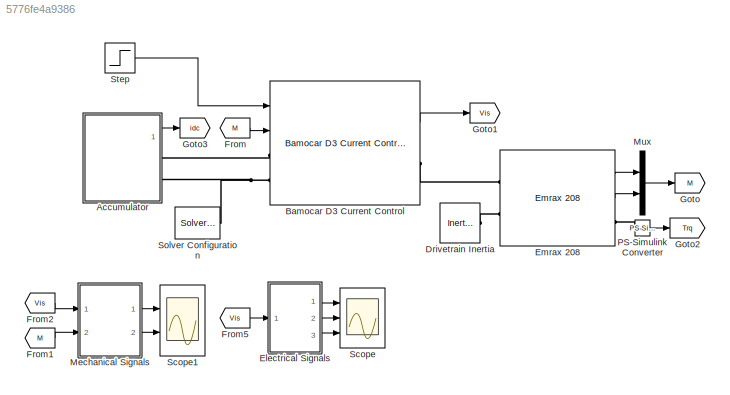
MODEL slx_5776fe4a9386
KIND model
CONFIG AbsTol = auto
CONFIG EnableMultiTasking = off
CONFIG FixedStep = auto
CONFIG InitFcn = DriveTrainInitialise;
CONFIG MaxStep = auto
CONFIG MinStep = auto
CONFIG RelTol = 1e-3
CONFIG SampleTimeConstraint = Unconstrained
CONFIG Solver = VariableStepAuto
CONFIG SolverName = VariableStepAuto
CONFIG StartTime = 0.0
CONFIG StopTime = 5
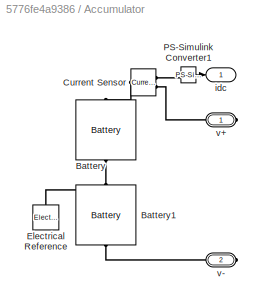
BLOCK [SubSystem] Accumulator
  AncestorBlock = AccumulatorLIB/Accumulator (Simple)
  Ports = [0, 1, 0, 0, 0, 0, 2]
  RequestExecContextInheritance = off
BLOCK [Reference] Accumulator/Battery  REF=ee_lib/Sources/Battery
  Ports = [0, 0, 0, 0, 0, 1, 1]
  SourceBlock = ee_lib/Sources/Battery
  SourceProductBaseCode = PS
  SourceProductName = Simscape Electrical
  SourceType = Battery
BLOCK [Reference] Accumulator/Battery1  REF=ee_lib/Sources/Battery
  Ports = [0, 0, 0, 0, 0, 1, 1]
  SourceBlock = ee_lib/Sources/Battery
  SourceProductBaseCode = PS
  SourceProductName = Simscape Electrical
  SourceType = Battery
BLOCK [Reference] Accumulator/Current Sensor  REF=fl_lib/Electrical/Electrical Sensors/Current Sensor
  Ports = [0, 0, 0, 0, 0, 1, 2]
  SourceBlock = fl_lib/Electrical/Electrical Sensors/Current Sensor
  SourceProductBaseCode = SS
  SourceProductName = Simscape
  SourceType = Current Sensor
BLOCK [Reference] Accumulator/Electrical Reference  REF=fl_lib/Electrical/Electrical Elements/Electrical Reference
  Ports = [0, 0, 0, 0, 0, 1]
  SourceBlock = fl_lib/Electrical/Electrical Elements/Electrical Reference
  SourceProductName = Foundation Library
  SourceType = Electrical Reference
BLOCK [Reference] Accumulator/PS-Simulink Converter1  REF=nesl_utility/PS-Simulink
Converter
  Ports = [0, 1, 0, 0, 0, 1]
  SourceBlock = nesl_utility/PS-Simulink\nConverter
  SourceProductBaseCode = SS
  SourceProductName = Simscape
  SourceType = PS-Simulink\nConverter
BLOCK [Outport] Accumulator/idc
  IconDisplay = Port number
BLOCK [PMIOPort] Accumulator/v+
  Side = Right
BLOCK [PMIOPort] Accumulator/v-
  Port = 2
  Side = Right
BLOCK [Reference] Bamocar D3 Current Control  REF=InverterLIB/Bamocar D3 Current Control (Simple IGBTs)
  Ports = [2, 1, 0, 0, 0, 2, 1]
  SourceBlock = InverterLIB/Bamocar D3 Current Control (Simple IGBTs)
  SourceType = Bamocar D3 Current Controlled (Simple Diode)
BLOCK [Reference] Drivetrain Inertia  REF=fl_lib/Mechanical/Rotational Elements/Inertia
  Ports = [0, 0, 0, 0, 0, 1]
  SourceBlock = fl_lib/Mechanical/Rotational Elements/Inertia
  SourceProductBaseCode = SS
  SourceProductName = Simscape
  SourceType = Inertia
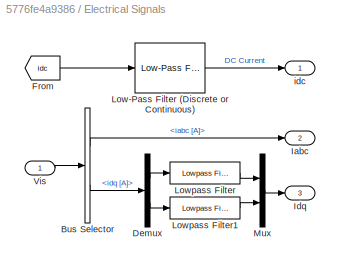
BLOCK [SubSystem] Electrical Signals
  Ports = [1, 3]
  RequestExecContextInheritance = off
BLOCK [BusSelector] Electrical Signals/Bus Selector
  OutputAsBus = off
  OutputSignals = signal2.iabc [A],signal2.idq [A]
  Ports = [1, 2]
BLOCK [Demux] Electrical Signals/Demux
  DisplayOption = bar
  Outputs = 2
  Ports = [1, 2]
BLOCK [From] Electrical Signals/From
  GotoTag = idc
  TagVisibility = global
BLOCK [Outport] Electrical Signals/Iabc
  IconDisplay = Port number
  Port = 2
BLOCK [Outport] Electrical Signals/Idq
  IconDisplay = Port number
  Port = 3
BLOCK [Reference] Electrical Signals/Low-Pass Filter (Discrete or Continuous)  REF=eeGeneralControl/Low-Pass Filter
(Discrete or Continuous)
  Ports = [1, 1]
  SourceBlock = eeGeneralControl/Low-Pass Filter\n(Discrete or Continuous)
  SourceProductBaseCode = PS
  SourceProductName = Simscape Electrical
  SourceType = Low-Pass Filter (Discrete or Continuous)
BLOCK [Reference] Electrical Signals/Lowpass Filter  REF=dspfdesign/Lowpass Filter
  Ports = [1, 1]
  SourceBlock = dspfdesign/Lowpass Filter
  SourceProductBaseCode = DS
  SourceProductName = DSP System Toolbox
  SourceType = dsp.LowpassFilter
BLOCK [Reference] Electrical Signals/Lowpass Filter1  REF=dspfdesign/Lowpass Filter
  Ports = [1, 1]
  SourceBlock = dspfdesign/Lowpass Filter
  SourceProductBaseCode = DS
  SourceProductName = DSP System Toolbox
  SourceType = dsp.LowpassFilter
BLOCK [Mux] Electrical Signals/Mux
  DisplayOption = bar
  Inputs = 2
  Ports = [2, 1]
BLOCK [Inport] Electrical Signals/Vis
  IconDisplay = Port number
BLOCK [Outport] Electrical Signals/idc
  IconDisplay = Port number
BLOCK [Reference] Emrax 208  REF=MotorLIB/Emrax 208
  Ports = [0, 2, 0, 0, 0, 2, 1]
  SourceBlock = MotorLIB/Emrax 208
  SourceType = Emrax 208
BLOCK [From] From
  GotoTag = M
BLOCK [From] From1
  GotoTag = M
BLOCK [From] From2
  GotoTag = Vis
BLOCK [From] From5
  GotoTag = Vis
BLOCK [Goto] Goto
  GotoTag = M
BLOCK [Goto] Goto1
  GotoTag = Vis
BLOCK [Goto] Goto2
  GotoTag = Trq
  TagVisibility = global
BLOCK [Goto] Goto3
  GotoTag = idc
  TagVisibility = global
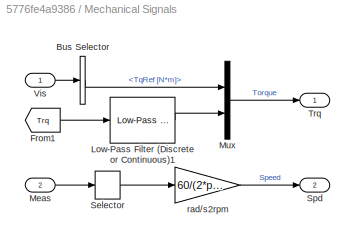
BLOCK [SubSystem] Mechanical Signals
  Ports = [2, 2]
  RequestExecContextInheritance = off
BLOCK [BusSelector] Mechanical Signals/Bus Selector
  OutputAsBus = off
  OutputSignals = signal2.TqRef [N*m]
  Ports = [1, 1]
BLOCK [From] Mechanical Signals/From1
  GotoTag = Trq
  TagVisibility = global
BLOCK [Reference] Mechanical Signals/Low-Pass Filter (Discrete or Continuous)1  REF=eeGeneralControl/Low-Pass Filter
(Discrete or Continuous)
  Ports = [1, 1]
  SourceBlock = eeGeneralControl/Low-Pass Filter\n(Discrete or Continuous)
  SourceProductBaseCode = PS
  SourceProductName = Simscape Electrical
  SourceType = Low-Pass Filter (Discrete or Continuous)
BLOCK [Inport] Mechanical Signals/Meas 
  IconDisplay = Port number
  Port = 2
BLOCK [Mux] Mechanical Signals/Mux
  DisplayOption = bar
  Inputs = 2
  Ports = [2, 1]
BLOCK [Selector] Mechanical Signals/Selector
  IndexOptions = Index vector (dialog)
  Indices = [1]
  InputPortWidth = 2
  OutputSizes = 1
  Ports = [1, 1]
BLOCK [Outport] Mechanical Signals/Spd
  IconDisplay = Port number
  Port = 2
BLOCK [Outport] Mechanical Signals/Trq
  IconDisplay = Port number
BLOCK [Inport] Mechanical Signals/Vis
  IconDisplay = Port number
BLOCK [Gain] Mechanical Signals/rad//s2rpm
  Gain = 60/(2*pi)
  OutDataTypeStr = Inherit: Inherit via internal rule
  ParamDataTypeStr = Inherit: Inherit via internal rule
  SaturateOnIntegerOverflow = off
BLOCK [Mux] Mux
  DisplayOption = bar
  Inputs = 2
  Ports = [2, 1]
BLOCK [Reference] PS-Simulink Converter  REF=nesl_utility/PS-Simulink
Converter
  Ports = [0, 1, 0, 0, 0, 1]
  SourceBlock = nesl_utility/PS-Simulink\nConverter
  SourceProductBaseCode = SS
  SourceProductName = Simscape
  SourceType = PS-Simulink\nConverter
BLOCK [Scope] Scope
  Floating = off
  NumInputPorts = 3
  Ports = [3]
  ScopeSpecificationString = Simulink.scopes.TimeScopeBlockCfg('CurrentConfiguration', extmgr.ConfigurationSet(extmgr.Configuration('Core','General UI',true),extmgr.Configuration('Core','Source UI',true),extmgr.Configuration('Sources','WiredSimulink',true,'DataLoggingVariableName','ScopeData1'),extmgr.Configuration('Visuals','Time Domain',true,'SerializedDisplays',{struct('MinYLimReal','-8.17679','MaxYLimReal','73.59115','YLa...<+2920ch>
BLOCK [Scope] Scope1
  Floating = off
  NumInputPorts = 2
  Ports = [2]
  ScopeSpecificationString = Simulink.scopes.TimeScopeBlockCfg('CurrentConfiguration', extmgr.ConfigurationSet(extmgr.Configuration('Core','General UI',true),extmgr.Configuration('Core','Source UI',true),extmgr.Configuration('Sources','WiredSimulink',true,'DataLoggingVariableName','MechData','DataLogging',true,'DataLoggingSaveFormat','StructureWithTime'),extmgr.Configuration('Visuals','Time Domain',true,'SerializedDisplays',{...<+2680ch>
BLOCK [Reference] Solver Configuration  REF=nesl_utility/Solver
Configuration
  Ports = [0, 0, 0, 0, 0, 0, 1]
  SourceBlock = nesl_utility/Solver\nConfiguration
  SourceProductBaseCode = SS
  SourceProductName = Simscape
  SourceType = Solver\nConfiguration
BLOCK [Step] Step
  After = 20
  AttributesFormatString = %<After> Nm at\n%<Time>
  SampleTime = 0
  Time = 0.1
LINE Accumulator:1 -> Goto3:1
LINE Bamocar D3 Current Control:1 -> Goto1:1
LINE Electrical Signals/Bus Selector:1 -> Electrical Signals/Iabc:1
LINE Electrical Signals/Bus Selector:2 -> Electrical Signals/Demux:1
LINE Electrical Signals/Demux:1 -> Electrical Signals/Lowpass Filter:1
LINE Electrical Signals/Demux:2 -> Electrical Signals/Lowpass Filter1:1
LINE Electrical Signals/From:1 -> Electrical Signals/Low-Pass Filter (Discrete or Continuous):1
LINE Electrical Signals/Low-Pass Filter (Discrete or Continuous):1 -> Electrical Signals/idc:1
LINE Electrical Signals/Lowpass Filter1:1 -> Electrical Signals/Mux:2
LINE Electrical Signals/Lowpass Filter:1 -> Electrical Signals/Mux:1
LINE Electrical Signals/Mux:1 -> Electrical Signals/Idq:1
LINE Electrical Signals/Vis:1 -> Electrical Signals/Bus Selector:1
LINE Electrical Signals:1 -> Scope:1
LINE Electrical Signals:2 -> Scope:2
LINE Electrical Signals:3 -> Scope:3
LINE Emrax 208:1 -> Mux:1
LINE Emrax 208:2 -> Mux:2
LINE From1:1 -> Mechanical Signals:2
LINE From2:1 -> Mechanical Signals:1
LINE From5:1 -> Electrical Signals:1
LINE From:1 -> Bamocar D3 Current Control:2
LINE Mechanical Signals/Bus Selector:1 -> Mechanical Signals/Mux:1
LINE Mechanical Signals/From1:1 -> Mechanical Signals/Low-Pass Filter (Discrete or Continuous)1:1
LINE Mechanical Signals/Low-Pass Filter (Discrete or Continuous)1:1 -> Mechanical Signals/Mux:2
LINE Mechanical Signals/Meas :1 -> Mechanical Signals/Selector:1
LINE Mechanical Signals/Mux:1 -> Mechanical Signals/Trq:1
LINE Mechanical Signals/Selector:1 -> Mechanical Signals/rad//s2rpm:1
LINE Mechanical Signals/Vis:1 -> Mechanical Signals/Bus Selector:1
LINE Mechanical Signals/rad//s2rpm:1 -> Mechanical Signals/Spd:1
LINE Mechanical Signals:1 -> Scope1:1
LINE Mechanical Signals:2 -> Scope1:2
LINE Mux:1 -> Goto:1
LINE PS-Simulink Converter:1 -> Goto2:1
LINE Step:1 -> Bamocar D3 Current Control:1
PLINE Accumulator:RConn1 -- Bamocar D3 Current Control:LConn1
PNET net1: Accumulator:RConn2 -- Bamocar D3 Current Control:LConn2 -- Solver Configuration:RConn1
PLINE Bamocar D3 Current Control:RConn1 -- Emrax 208:LConn1
PLINE Drivetrain Inertia:LConn1 -- Emrax 208:LConn2
PLINE Emrax 208:RConn1 -- PS-Simulink Converter:LConn1
note: PNET lines group multi-terminal physical nets as a canonical sorted terminal list (undirected conserving connections); 2-terminal nets keep the pairwise PLINE form
